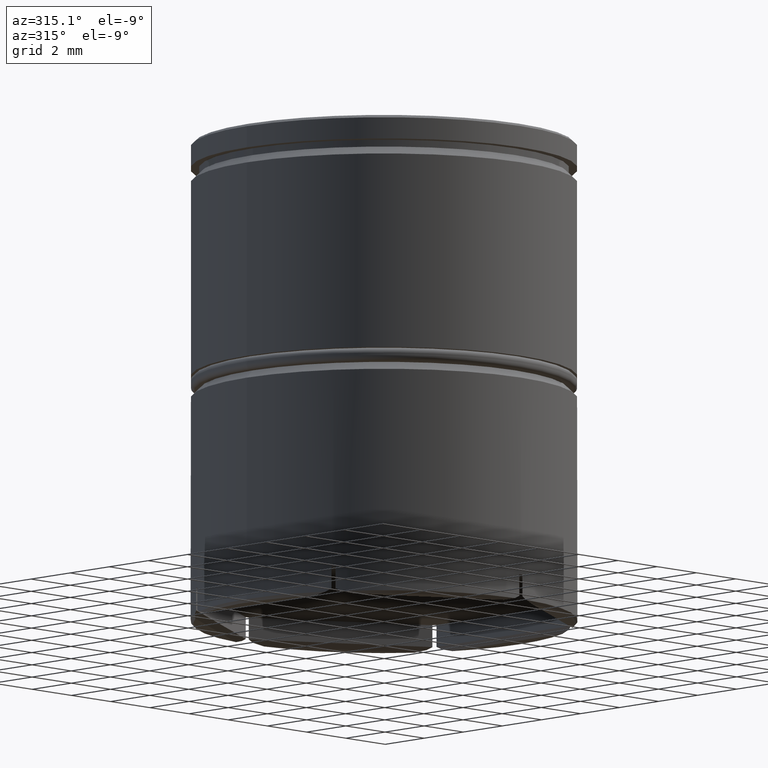
[diagram: clean part render]
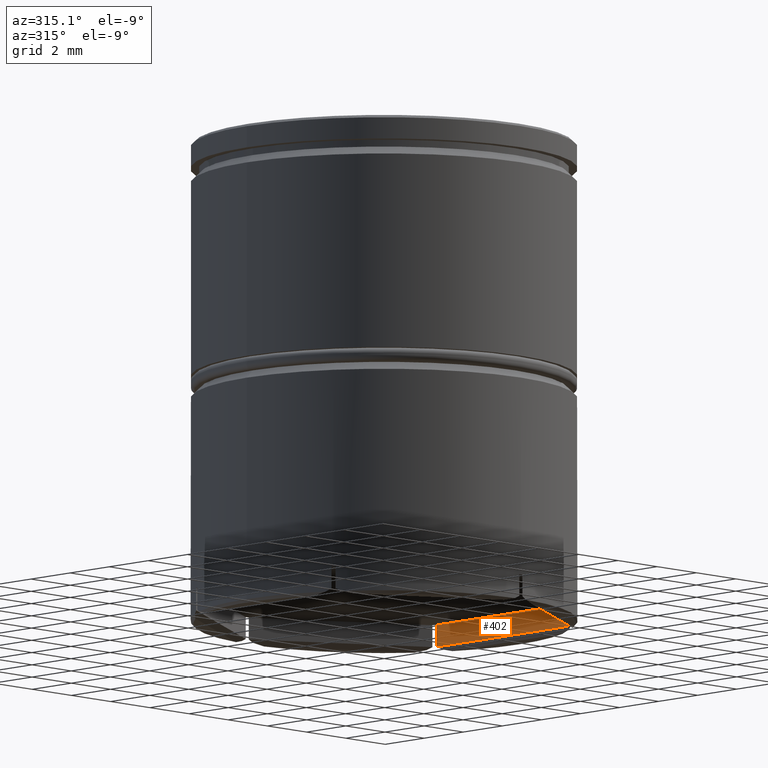
[diagram: same view with one face highlighted and labeled with its STEP entity id]
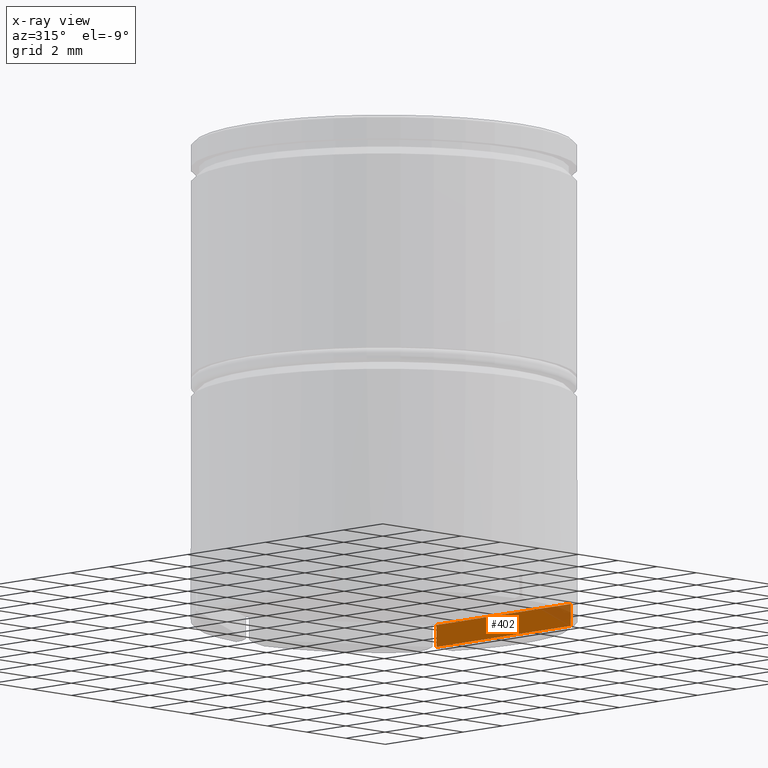
[diagram: x-ray of the same camera — body ghosted, the highlighted face saturated]
A machine part, auxiliary view. The second image highlights one B-rep face of the part: STEP entity #402.
The next image is the same camera in x-ray: the body ghosted, the highlighted face saturated — about 11% of this face is hidden behind the body in this view.
In plain terms, the highlighted planar face has unit normal (1, 0, -0).
Its self-contained STEP definition (entity closure, byte-faithful):
#75 = ORIENTED_EDGE ( 'NONE', *, *, #1431, .F. ) ;
#76 = LINE ( 'NONE', #959, #993 ) ;
#101 = VERTEX_POINT ( 'NONE', #639 ) ;
#304 = CARTESIAN_POINT ( 'NONE',  ( 6.100000000000003197, 3.521836642056716205, -16.50000000000000000 ) ) ;
#337 = LINE ( 'NONE', #1203, #1202 ) ;
#390 = ORIENTED_EDGE ( 'NONE', *, *, #1441, .T. ) ;
#402 = ADVANCED_FACE ( 'NONE', ( #1054 ), #1428, .F. ) ;
#435 = DIRECTION ( 'NONE',  ( -1.231405408800950272E-16, 1.000000000000000000, 0.000000000000000000 ) ) ;
#470 = DIRECTION ( 'NONE',  ( 1.231405408800950026E-16, -1.000000000000000000, 0.000000000000000000 ) ) ;
#560 = ORIENTED_EDGE ( 'NONE', *, *, #793, .T. ) ;
#592 = VERTEX_POINT ( 'NONE', #790 ) ;
#639 = CARTESIAN_POINT ( 'NONE',  ( 6.100000000000003197, 3.433656942677876245, -17.30000000000000071 ) ) ;
#679 = EDGE_LOOP ( 'NONE', ( #560, #390, #1409, #75 ) ) ;
#736 = DIRECTION ( 'NONE',  ( -0.000000000000000000, -0.000000000000000000, 1.000000000000000000 ) ) ;
#790 = CARTESIAN_POINT ( 'NONE',  ( 6.100000000000003197, -3.433656942677874468, -16.50000000000000000 ) ) ;
#793 = EDGE_CURVE ( 'NONE', #1060, #101, #1467, .T. ) ;
#800 = VECTOR ( 'NONE', #1568, 1000.000000000000000 ) ;
#838 = CARTESIAN_POINT ( 'NONE',  ( 6.100000000000003197, 3.433656942677876245, 0.000000000000000000 ) ) ;
#862 = LINE ( 'NONE', #1363, #1109 ) ;
#885 = VERTEX_POINT ( 'NONE', #889 ) ;
#889 = CARTESIAN_POINT ( 'NONE',  ( 6.100000000000003197, -3.433656942677874468, -17.30000000000000071 ) ) ;
#959 = CARTESIAN_POINT ( 'NONE',  ( 6.100000000000003197, 3.521836642056716205, -16.50000000000000000 ) ) ;
#993 = VECTOR ( 'NONE', #470, 1000.000000000000000 ) ;
#1054 = FACE_OUTER_BOUND ( 'NONE', #679, .T. ) ;
#1060 = VERTEX_POINT ( 'NONE', #1631 ) ;
#1069 = DIRECTION ( 'NONE',  ( 1.231405408800950272E-16, -1.000000000000000000, 0.000000000000000000 ) ) ;
#1109 = VECTOR ( 'NONE', #736, 1000.000000000000000 ) ;
#1128 = EDGE_CURVE ( 'NONE', #885, #592, #862, .T. ) ;
#1202 = VECTOR ( 'NONE', #1069, 1000.000000000000000 ) ;
#1203 = CARTESIAN_POINT ( 'NONE',  ( 6.100000000000004086, -3.224903099319418320, -17.30000000000000071 ) ) ;
#1363 = CARTESIAN_POINT ( 'NONE',  ( 6.100000000000003197, -3.433656942677874468, 0.000000000000000000 ) ) ;
#1409 = ORIENTED_EDGE ( 'NONE', *, *, #1128, .T. ) ;
#1427 = AXIS2_PLACEMENT_3D ( 'NONE', #304, #1559, #435 ) ;
#1428 = PLANE ( 'NONE',  #1427 ) ;
#1431 = EDGE_CURVE ( 'NONE', #1060, #592, #76, .T. ) ;
#1441 = EDGE_CURVE ( 'NONE', #101, #885, #337, .T. ) ;
#1467 = LINE ( 'NONE', #838, #800 ) ;
#1559 = DIRECTION ( 'NONE',  ( 1.000000000000000000, 1.231405408800950272E-16, -0.000000000000000000 ) ) ;
#1568 = DIRECTION ( 'NONE',  ( 0.000000000000000000, 0.000000000000000000, -1.000000000000000000 ) ) ;
#1631 = CARTESIAN_POINT ( 'NONE',  ( 6.100000000000003197, 3.433656942677876245, -16.50000000000000000 ) ) ;